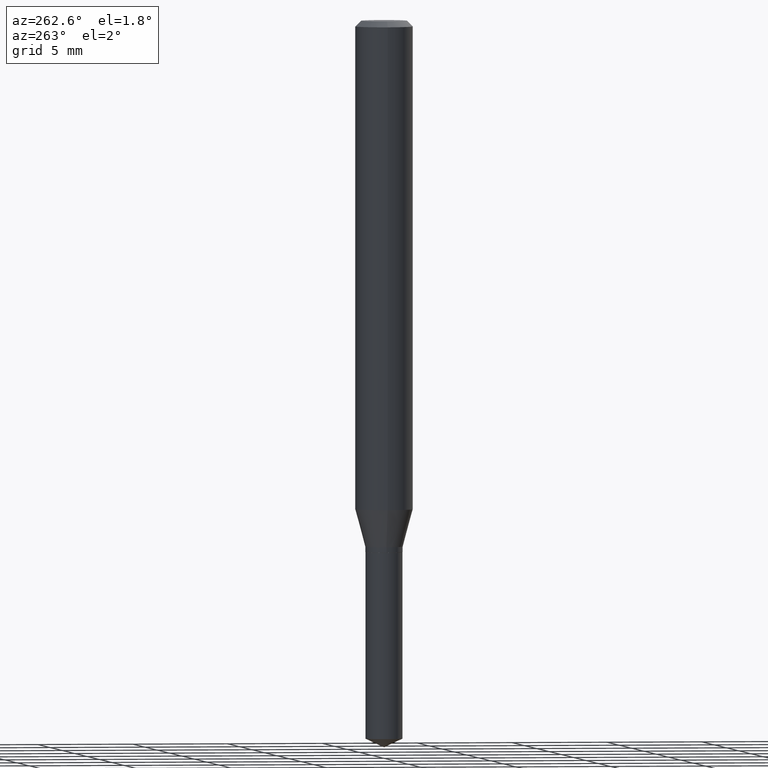
[diagram: clean part render]
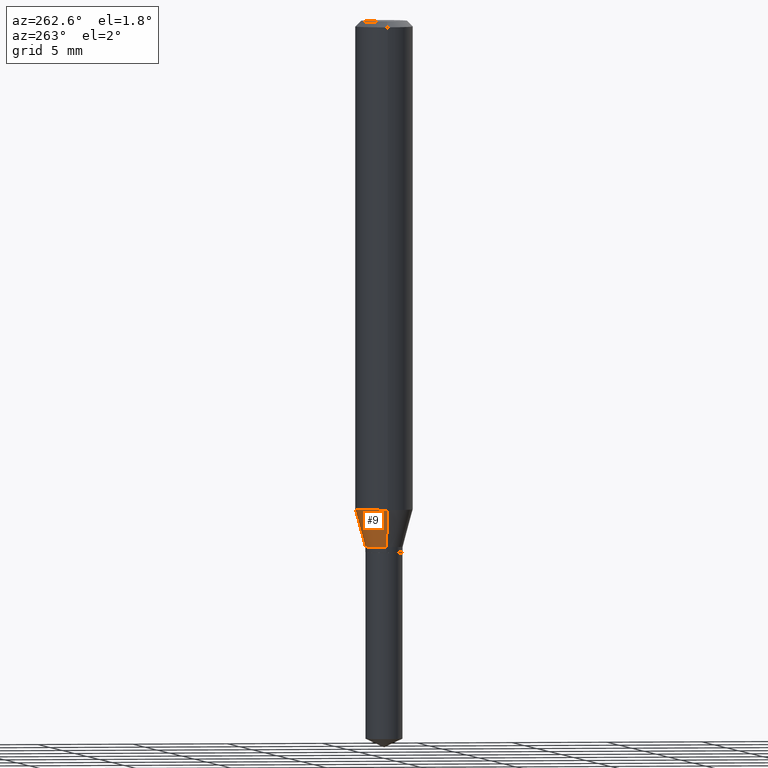
[diagram: same view with one face highlighted and labeled with its STEP entity id]
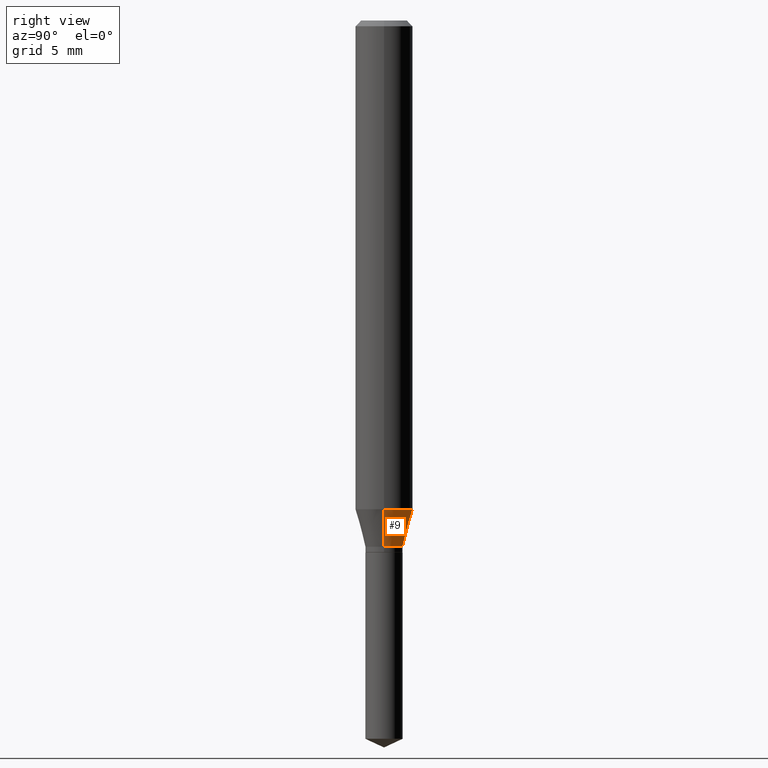
[diagram: same view with one face highlighted and labeled with its STEP entity id]
A machine part, auxiliary view. The second image highlights one B-rep face of the part: STEP entity #9.
A second angle (right view) of the same face is appended — the face is thin or edge-on in the first view.
In plain terms, the highlighted conical surface has half-angle 15 deg.
Its self-contained STEP definition (entity closure, byte-faithful):
#9 = ADVANCED_FACE ( 'NONE', ( #312 ), #394, .T. ) ;
#20 = CARTESIAN_POINT ( 'NONE',  ( -0.03840000000000000357, -3.508425879435247821E-15, -1.082999999999999963 ) ) ;
#24 = VERTEX_POINT ( 'NONE', #88 ) ;
#40 = DIRECTION ( 'NONE',  ( -2.445468806185136597E-29, 3.491481338843145583E-15, 1.000000000000000000 ) ) ;
#50 = DIRECTION ( 'NONE',  ( 1.000000000000000000, -6.982962677686264344E-15, 0.000000000000000000 ) ) ;
#53 = CARTESIAN_POINT ( 'NONE',  ( 0.03840000000000000357, -4.049420056790279028E-15, -1.082999999999999963 ) ) ;
#88 = CARTESIAN_POINT ( 'NONE',  ( 0.05905000000000011628, -3.924540770342018857E-15, -1.005933150823702382 ) ) ;
#103 = DIRECTION ( 'NONE',  ( 1.000000000000000000, -6.982962677686266711E-15, 0.000000000000000000 ) ) ;
#110 = CARTESIAN_POINT ( 'NONE',  ( 2.459978141446892264E-29, -3.512196824224644331E-15, -1.005933150823702382 ) ) ;
#119 = EDGE_LOOP ( 'NONE', ( #205, #207, #317, #154 ) ) ;
#134 = EDGE_CURVE ( 'NONE', #156, #24, #465, .T. ) ;
#138 = DIRECTION ( 'NONE',  ( -0.2588190451025211836, 5.211531920934547886E-15, 0.9659258262890679791 ) ) ;
#154 = ORIENTED_EDGE ( 'NONE', *, *, #134, .F. ) ;
#156 = VERTEX_POINT ( 'NONE', #53 ) ;
#201 = DIRECTION ( 'NONE',  ( 1.000000000000000000, -6.982962677686264344E-15, 0.000000000000000000 ) ) ;
#205 = ORIENTED_EDGE ( 'NONE', *, *, #356, .T. ) ;
#207 = ORIENTED_EDGE ( 'NONE', *, *, #318, .T. ) ;
#214 = CIRCLE ( 'NONE', #486, 0.03840000000000000357 ) ;
#218 = CARTESIAN_POINT ( 'NONE',  ( -0.03840000000000000357, -3.527629026798885149E-15, -1.082999999999999963 ) ) ;
#220 = VECTOR ( 'NONE', #138, 39.37007874015748854 ) ;
#228 = CARTESIAN_POINT ( 'NONE',  ( 0.03840000000000000357, -4.049420056790279028E-15, -1.082999999999999963 ) ) ;
#235 = CARTESIAN_POINT ( 'NONE',  ( 2.648442717098502966E-29, -3.781274289967126614E-15, -1.082999999999999963 ) ) ;
#273 = DIRECTION ( 'NONE',  ( 0.2588190451025211836, 1.565188264969622559E-15, 0.9659258262890679791 ) ) ;
#284 = VERTEX_POINT ( 'NONE', #475 ) ;
#288 = VECTOR ( 'NONE', #273, 39.37007874015748854 ) ;
#312 = FACE_OUTER_BOUND ( 'NONE', #119, .T. ) ;
#317 = ORIENTED_EDGE ( 'NONE', *, *, #471, .F. ) ;
#318 = EDGE_CURVE ( 'NONE', #443, #284, #442, .T. ) ;
#345 = CARTESIAN_POINT ( 'NONE',  ( 2.648442717098502966E-29, -3.781274289967126614E-15, -1.082999999999999963 ) ) ;
#352 = DIRECTION ( 'NONE',  ( -2.445468806185136597E-29, 3.491481338843145583E-15, 1.000000000000000000 ) ) ;
#356 = EDGE_CURVE ( 'NONE', #156, #443, #214, .T. ) ;
#373 = DIRECTION ( 'NONE',  ( -2.445468806185136597E-29, 3.491481338843145583E-15, 1.000000000000000000 ) ) ;
#381 = AXIS2_PLACEMENT_3D ( 'NONE', #110, #373, #103 ) ;
#394 = CONICAL_SURFACE ( 'NONE', #414, 0.03840000000000000357, 0.2617993877991499074 ) ;
#414 = AXIS2_PLACEMENT_3D ( 'NONE', #345, #352, #50 ) ;
#442 = LINE ( 'NONE', #20, #220 ) ;
#443 = VERTEX_POINT ( 'NONE', #218 ) ;
#449 = CIRCLE ( 'NONE', #381, 0.05905000000000011628 ) ;
#465 = LINE ( 'NONE', #228, #288 ) ;
#471 = EDGE_CURVE ( 'NONE', #24, #284, #449, .T. ) ;
#475 = CARTESIAN_POINT ( 'NONE',  ( -0.05905000000000011628, -3.092621338758304049E-15, -1.005933150823702382 ) ) ;
#486 = AXIS2_PLACEMENT_3D ( 'NONE', #235, #40, #201 ) ;